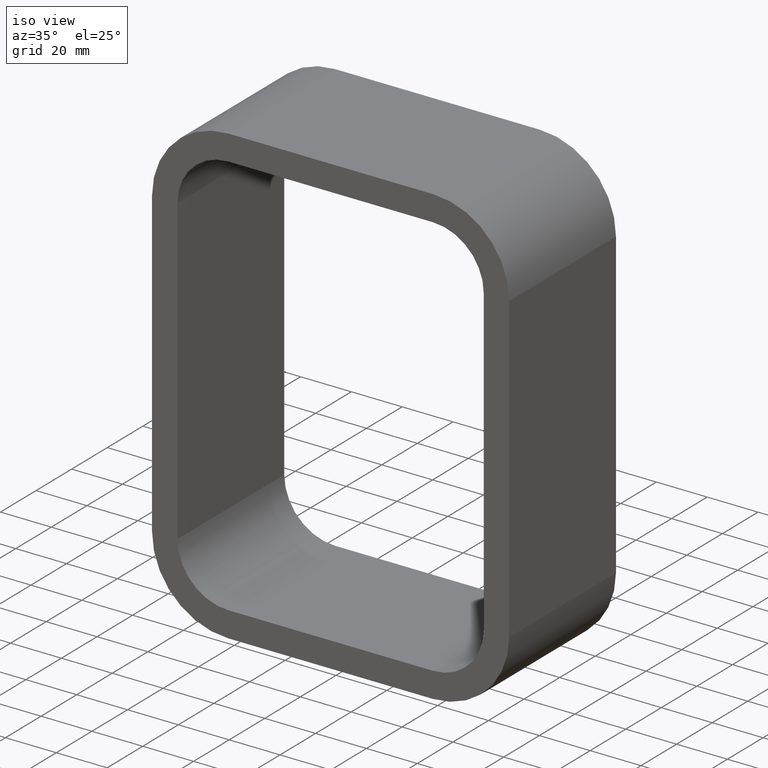
[diagram: clean part render]
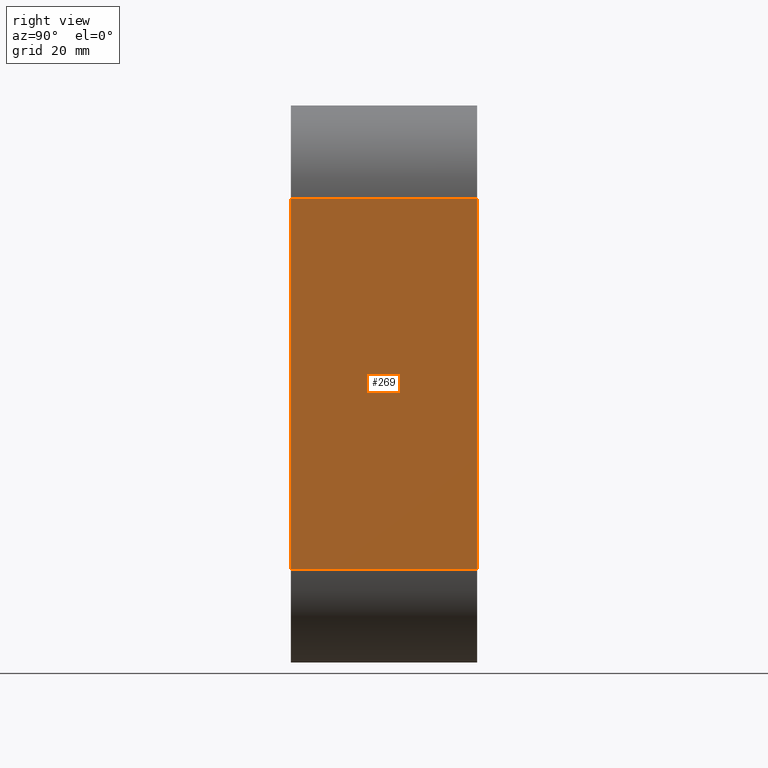
[diagram: tour spotlight — one face highlighted and labeled with its STEP entity id]
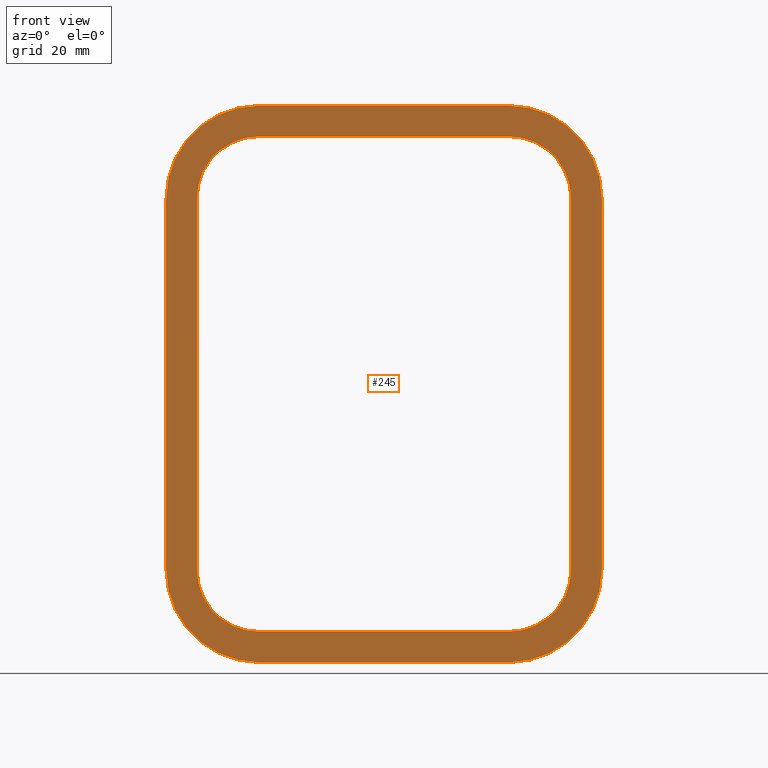
[diagram: tour spotlight — one face highlighted and labeled with its STEP entity id]
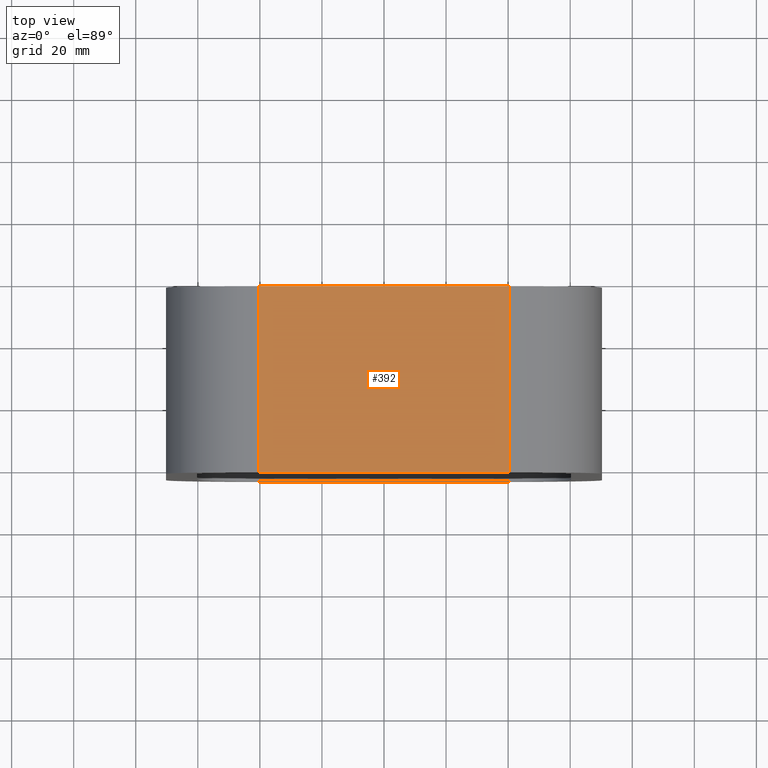
[diagram: tour spotlight — one face highlighted and labeled with its STEP entity id]
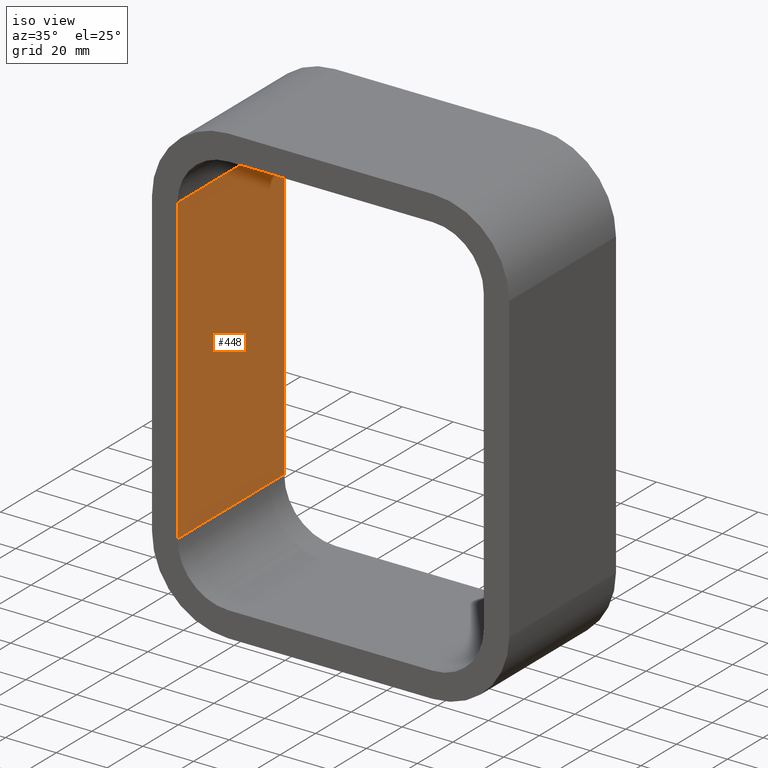
[diagram: tour spotlight — one face highlighted and labeled with its STEP entity id]
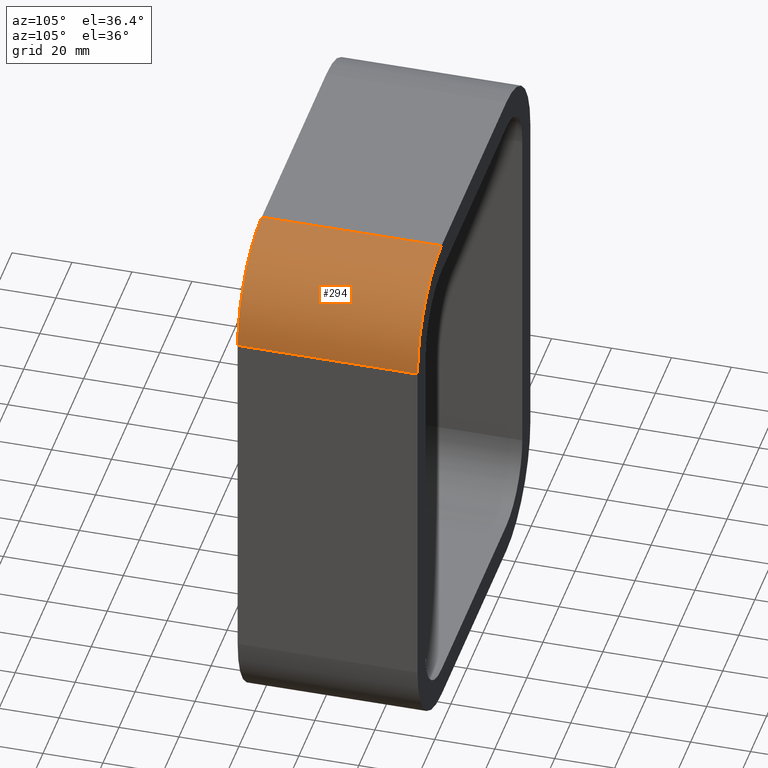
[diagram: tour spotlight — one face highlighted and labeled with its STEP entity id]
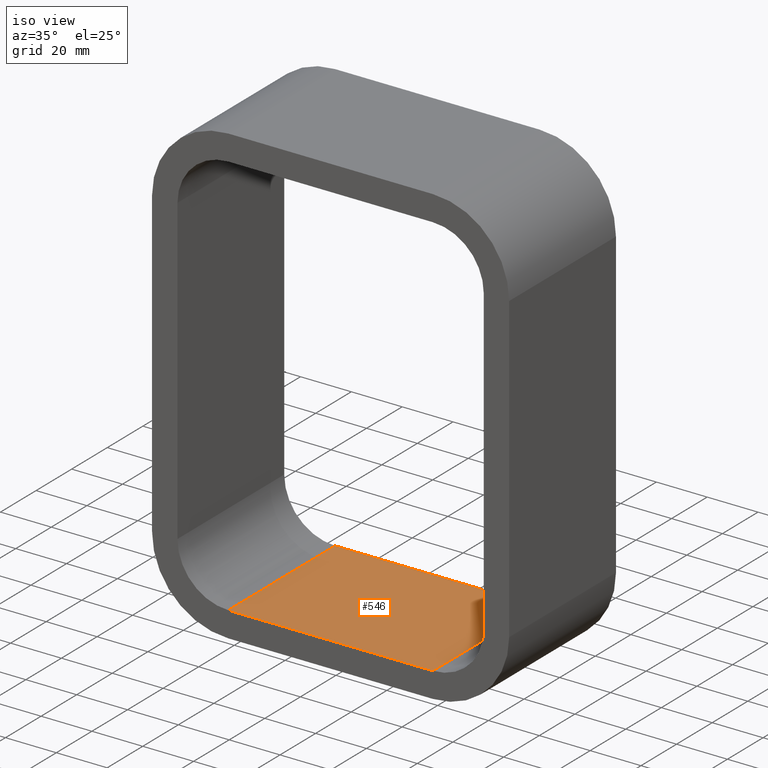
[diagram: tour spotlight — one face highlighted and labeled with its STEP entity id]
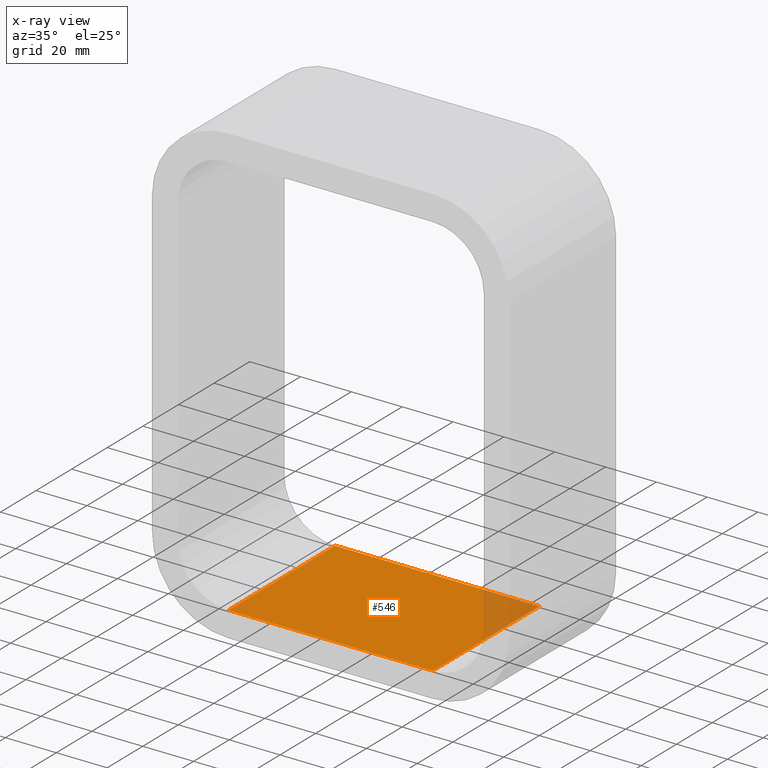
[diagram: x-ray of the same camera — body ghosted, this tour face saturated]
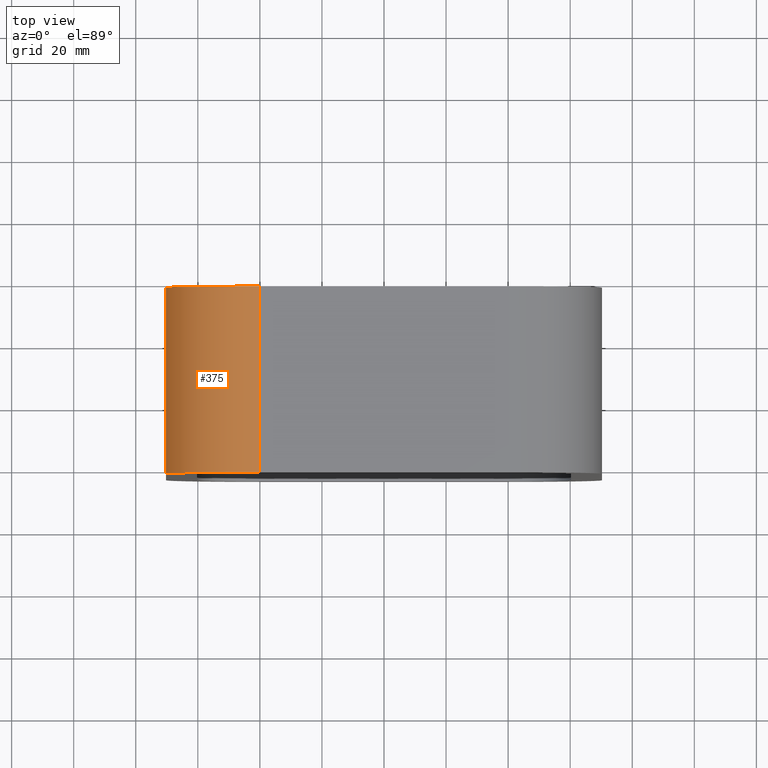
[diagram: tour spotlight — one face highlighted and labeled with its STEP entity id]
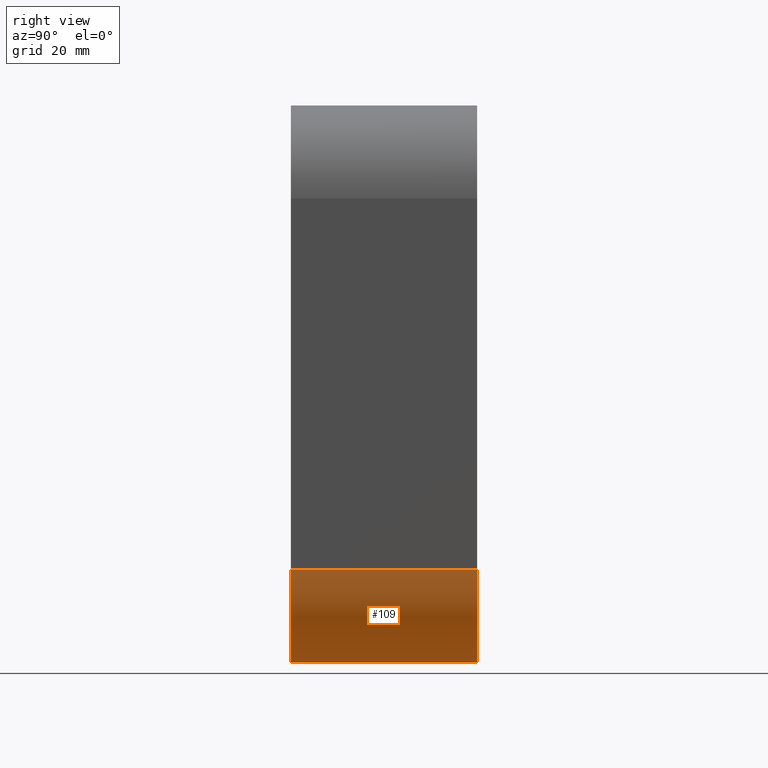
[diagram: tour spotlight — one face highlighted and labeled with its STEP entity id]
A machine part: a face-by-face anatomy tour. The part has 18 B-rep faces; the first image is the clean iso view, then the 8 largest visible faces are spotlighted one at a time (largest first), each with its STEP entity span.

Face 1 — right view, entity #269. In plain terms, the highlighted planar face has unit normal (1, 0, 0).
Definition (entity closure, byte-faithful):
#75=CARTESIAN_POINT('',(70.25,57.0,-59.750000000000014));
#76=VERTEX_POINT('',#75);
#84=CARTESIAN_POINT('',(70.25,-3.0,-59.750000000000014));
#85=VERTEX_POINT('',#84);
#86=CARTESIAN_POINT('',(70.25,57.0,-59.750000000000014));
#87=DIRECTION('',(0.0,-1.0,0.0));
#88=VECTOR('',#87,60.0);
#89=LINE('',#86,#88);
#90=EDGE_CURVE('',#76,#85,#89,.T.);
#116=CARTESIAN_POINT('',(70.25,-3.0,59.750000000000014));
#117=VERTEX_POINT('',#116);
#118=CARTESIAN_POINT('',(70.25,-3.0,-59.750000000000014));
#119=DIRECTION('',(0.0,0.0,1.0));
#120=VECTOR('',#119,119.50000000000003);
#121=LINE('',#118,#120);
#122=EDGE_CURVE('',#85,#117,#121,.T.);
#246=CARTESIAN_POINT('',(70.25,0.0,89.750000000000014));
#247=DIRECTION('',(1.0,0.0,0.0));
#248=DIRECTION('',(0.0,0.0,-1.0));
#249=AXIS2_PLACEMENT_3D('',#246,#247,#248);
#250=PLANE('',#249);
#251=ORIENTED_EDGE('',*,*,#90,.F.);
#252=CARTESIAN_POINT('',(70.25,57.0,59.750000000000014));
#253=VERTEX_POINT('',#252);
#254=CARTESIAN_POINT('',(70.25,57.0,59.750000000000014));
#255=DIRECTION('',(0.0,0.0,-1.0));
#256=VECTOR('',#255,119.50000000000003);
#257=LINE('',#254,#256);
#258=EDGE_CURVE('',#253,#76,#257,.T.);
#259=ORIENTED_EDGE('',*,*,#258,.F.);
#260=CARTESIAN_POINT('',(70.25,-3.0,59.750000000000014));
#261=DIRECTION('',(0.0,1.0,0.0));
#262=VECTOR('',#261,60.0);
#263=LINE('',#260,#262);
#264=EDGE_CURVE('',#117,#253,#263,.T.);
#265=ORIENTED_EDGE('',*,*,#264,.F.);
#266=ORIENTED_EDGE('',*,*,#122,.F.);
#267=EDGE_LOOP('',(#251,#259,#265,#266));
#268=FACE_OUTER_BOUND('',#267,.T.);
#269=ADVANCED_FACE('',(#268),#250,.T.);

Face 2 — front view, entity #245. In plain terms, the highlighted planar face has unit normal (0, 1, 0).
Definition (entity closure, byte-faithful):
#84=CARTESIAN_POINT('',(70.25,-3.0,-59.750000000000014));
#85=VERTEX_POINT('',#84);
#92=CARTESIAN_POINT('',(40.249999999999993,-3.0,-89.750000000000014));
#93=VERTEX_POINT('',#92);
#94=CARTESIAN_POINT('',(40.249999999999993,-3.0,-59.750000000000014));
#95=DIRECTION('',(0.0,1.0,0.0));
#96=DIRECTION('',(0.707106781186547,0.0,-0.707106781186547));
#97=AXIS2_PLACEMENT_3D('',#94,#95,#96);
#98=CIRCLE('',#97,30.0);
#99=EDGE_CURVE('',#85,#93,#98,.T.);
#110=CARTESIAN_POINT('',(-8.611167E-015,-3.0,0.0));
#111=DIRECTION('',(0.0,1.0,0.0));
#112=DIRECTION('',(0.0,0.0,1.0));
#113=AXIS2_PLACEMENT_3D('',#110,#111,#112);
#114=PLANE('',#113);
#115=ORIENTED_EDGE('',*,*,#99,.F.);
#116=CARTESIAN_POINT('',(70.25,-3.0,59.750000000000014));
#117=VERTEX_POINT('',#116);
#118=CARTESIAN_POINT('',(70.25,-3.0,-59.750000000000014));
#119=DIRECTION('',(0.0,0.0,1.0));
#120=VECTOR('',#119,119.50000000000003);
#121=LINE('',#118,#120);
#122=EDGE_CURVE('',#85,#117,#121,.T.);
#123=ORIENTED_EDGE('',*,*,#122,.T.);
#124=CARTESIAN_POINT('',(40.249999999999993,-3.0,89.750000000000014));
#125=VERTEX_POINT('',#124);
#126=CARTESIAN_POINT('',(40.249999999999993,-3.0,59.750000000000014));
#127=DIRECTION('',(0.0,1.0,0.0));
#128=DIRECTION('',(0.707106781186547,0.0,0.707106781186547));
#129=AXIS2_PLACEMENT_3D('',#126,#127,#128);
#130=CIRCLE('',#129,30.0);
#131=EDGE_CURVE('',#125,#117,#130,.T.);
#132=ORIENTED_EDGE('',*,*,#131,.F.);
#133=CARTESIAN_POINT('',(-40.250000000000014,-3.0,89.750000000000014));
#134=VERTEX_POINT('',#133);
#135=CARTESIAN_POINT('',(40.249999999999986,-3.0,89.750000000000014));
#136=DIRECTION('',(-1.0,0.0,0.0));
#137=VECTOR('',#136,80.5);
#138=LINE('',#135,#137);
#139=EDGE_CURVE('',#125,#134,#138,.T.);
#140=ORIENTED_EDGE('',*,*,#139,.T.);
#141=CARTESIAN_POINT('',(-70.250000000000014,-3.0,59.750000000000014));
#142=VERTEX_POINT('',#141);
#143=CARTESIAN_POINT('',(-40.250000000000014,-3.0,59.750000000000014));
#144=DIRECTION('',(0.0,1.0,0.0));
#145=DIRECTION('',(-0.707106781186547,0.0,0.707106781186547));
#146=AXIS2_PLACEMENT_3D('',#143,#144,#145);
#147=CIRCLE('',#146,30.0);
#148=EDGE_CURVE('',#142,#134,#147,.T.);
#149=ORIENTED_EDGE('',*,*,#148,.F.);
#150=CARTESIAN_POINT('',(-70.250000000000014,-3.0,-59.750000000000014));
#151=VERTEX_POINT('',#150);
#152=CARTESIAN_POINT('',(-70.250000000000014,-3.0,59.750000000000014));
#153=DIRECTION('',(0.0,0.0,-1.0));
#154=VECTOR('',#153,119.50000000000003);
#155=LINE('',#152,#154);
#156=EDGE_CURVE('',#142,#151,#155,.T.);
#157=ORIENTED_EDGE('',*,*,#156,.T.);
#158=CARTESIAN_POINT('',(-40.250000000000014,-3.0,-89.750000000000014));
#159=VERTEX_POINT('',#158);
#160=CARTESIAN_POINT('',(-40.250000000000014,-3.0,-59.750000000000014));
#161=DIRECTION('',(0.0,1.0,0.0));
#162=DIRECTION('',(-0.707106781186547,0.0,-0.707106781186547));
#163=AXIS2_PLACEMENT_3D('',#160,#161,#162);
#164=CIRCLE('',#163,30.0);
#165=EDGE_CURVE('',#159,#151,#164,.T.);
#166=ORIENTED_EDGE('',*,*,#165,.F.);
#167=CARTESIAN_POINT('',(-40.25,-3.0,-89.750000000000014));
#168=DIRECTION('',(1.0,0.0,0.0));
#169=VECTOR('',#168,80.5);
#170=LINE('',#167,#169);
#171=EDGE_CURVE('',#159,#93,#170,.T.);
#172=ORIENTED_EDGE('',*,*,#171,.T.);
#173=EDGE_LOOP('',(#115,#123,#132,#140,#149,#157,#166,#172));
#174=FACE_OUTER_BOUND('',#173,.T.);
#175=CARTESIAN_POINT('',(60.25,-3.0,59.750000000000014));
#176=VERTEX_POINT('',#175);
#177=CARTESIAN_POINT('',(60.25,-3.0,-59.75));
#178=VERTEX_POINT('',#177);
#179=CARTESIAN_POINT('',(60.25,-3.0,59.750000000000014));
#180=DIRECTION('',(0.0,0.0,-1.0));
#181=VECTOR('',#180,119.5);
#182=LINE('',#179,#181);
#183=EDGE_CURVE('',#176,#178,#182,.T.);
#184=ORIENTED_EDGE('',*,*,#183,.T.);
#185=CARTESIAN_POINT('',(40.25,-3.0,-79.75));
#186=VERTEX_POINT('',#185);
#187=CARTESIAN_POINT('',(40.25,-3.0,-59.75));
#188=DIRECTION('',(0.0,-1.0,0.0));
#189=DIRECTION('',(0.707106781186547,0.0,-0.707106781186547));
#190=AXIS2_PLACEMENT_3D('',#187,#188,#189);
#191=CIRCLE('',#190,19.999999999999996);
#192=EDGE_CURVE('',#186,#178,#191,.T.);
#193=ORIENTED_EDGE('',*,*,#192,.F.);
#194=CARTESIAN_POINT('',(-40.25,-3.0,-79.75));
#195=VERTEX_POINT('',#194);
#196=CARTESIAN_POINT('',(40.25,-3.0,-79.75));
#197=DIRECTION('',(-1.0,0.0,0.0));
#198=VECTOR('',#197,80.5);
#199=LINE('',#196,#198);
#200=EDGE_CURVE('',#186,#195,#199,.T.);
#201=ORIENTED_EDGE('',*,*,#200,.T.);
#202=CARTESIAN_POINT('',(-60.250000000000014,-3.0,-59.75));
#203=VERTEX_POINT('',#202);
#204=CARTESIAN_POINT('',(-40.25,-3.0,-59.75));
#205=DIRECTION('',(0.0,-1.0,0.0));
#206=DIRECTION('',(-0.707106781186547,0.0,-0.707106781186547));
#207=AXIS2_PLACEMENT_3D('',#204,#205,#206);
#208=CIRCLE('',#207,19.999999999999996);
#209=EDGE_CURVE('',#203,#195,#208,.T.);
#210=ORIENTED_EDGE('',*,*,#209,.F.);
#211=CARTESIAN_POINT('',(-60.250000000000014,-3.0,59.750000000000021));
#212=VERTEX_POINT('',#211);
#213=CARTESIAN_POINT('',(-60.250000000000014,-3.0,-59.75));
#214=DIRECTION('',(0.0,0.0,1.0));
#215=VECTOR('',#214,119.50000000000003);
#216=LINE('',#213,#215);
#217=EDGE_CURVE('',#203,#212,#216,.T.);
#218=ORIENTED_EDGE('',*,*,#217,.T.);
#219=CARTESIAN_POINT('',(-40.250000000000014,-3.0,79.750000000000014));
#220=VERTEX_POINT('',#219);
#221=CARTESIAN_POINT('',(-40.250000000000014,-3.0,59.750000000000014));
#222=DIRECTION('',(0.0,-1.0,0.0));
#223=DIRECTION('',(-0.707106781186547,0.0,0.707106781186547));
#224=AXIS2_PLACEMENT_3D('',#221,#222,#223);
#225=CIRCLE('',#224,19.999999999999996);
#226=EDGE_CURVE('',#220,#212,#225,.T.);
#227=ORIENTED_EDGE('',*,*,#226,.F.);
#228=CARTESIAN_POINT('',(40.25,-3.0,79.750000000000014));
#229=VERTEX_POINT('',#228);
#230=CARTESIAN_POINT('',(-40.250000000000014,-3.0,79.750000000000014));
#231=DIRECTION('',(1.0,0.0,0.0));
#232=VECTOR('',#231,80.500000000000014);
#233=LINE('',#230,#232);
#234=EDGE_CURVE('',#220,#229,#233,.T.);
#235=ORIENTED_EDGE('',*,*,#234,.T.);
#236=CARTESIAN_POINT('',(40.25,-3.0,59.750000000000014));
#237=DIRECTION('',(0.0,-1.0,0.0));
#238=DIRECTION('',(0.707106781186547,0.0,0.707106781186547));
#239=AXIS2_PLACEMENT_3D('',#236,#237,#238);
#240=CIRCLE('',#239,19.999999999999996);
#241=EDGE_CURVE('',#176,#229,#240,.T.);
#242=ORIENTED_EDGE('',*,*,#241,.F.);
#243=EDGE_LOOP('',(#184,#193,#201,#210,#218,#227,#235,#242));
#244=FACE_BOUND('',#243,.T.);
#245=ADVANCED_FACE('',(#174,#244),#114,.F.);

Face 3 — top view, entity #392. In plain terms, the highlighted planar face has unit normal (0, 0, 1).
Definition (entity closure, byte-faithful):
#124=CARTESIAN_POINT('',(40.249999999999993,-3.0,89.750000000000014));
#125=VERTEX_POINT('',#124);
#133=CARTESIAN_POINT('',(-40.250000000000014,-3.0,89.750000000000014));
#134=VERTEX_POINT('',#133);
#135=CARTESIAN_POINT('',(40.249999999999986,-3.0,89.750000000000014));
#136=DIRECTION('',(-1.0,0.0,0.0));
#137=VECTOR('',#136,80.5);
#138=LINE('',#135,#137);
#139=EDGE_CURVE('',#125,#134,#138,.T.);
#277=CARTESIAN_POINT('',(40.249999999999993,57.0,89.750000000000014));
#278=VERTEX_POINT('',#277);
#286=CARTESIAN_POINT('',(40.249999999999993,57.0,89.750000000000014));
#287=DIRECTION('',(0.0,-1.0,0.0));
#288=VECTOR('',#287,60.0);
#289=LINE('',#286,#288);
#290=EDGE_CURVE('',#278,#125,#289,.T.);
#356=CARTESIAN_POINT('',(-40.250000000000014,57.0,89.750000000000014));
#357=VERTEX_POINT('',#356);
#367=CARTESIAN_POINT('',(-40.250000000000014,-3.0,89.750000000000014));
#368=DIRECTION('',(0.0,1.0,0.0));
#369=VECTOR('',#368,60.0);
#370=LINE('',#367,#369);
#371=EDGE_CURVE('',#134,#357,#370,.T.);
#376=CARTESIAN_POINT('',(-70.250000000000014,0.0,89.750000000000014));
#377=DIRECTION('',(0.0,0.0,1.0));
#378=DIRECTION('',(1.0,0.0,0.0));
#379=AXIS2_PLACEMENT_3D('',#376,#377,#378);
#380=PLANE('',#379);
#381=ORIENTED_EDGE('',*,*,#290,.F.);
#382=CARTESIAN_POINT('',(-40.250000000000014,57.0,89.750000000000014));
#383=DIRECTION('',(1.0,0.0,0.0));
#384=VECTOR('',#383,80.5);
#385=LINE('',#382,#384);
#386=EDGE_CURVE('',#357,#278,#385,.T.);
#387=ORIENTED_EDGE('',*,*,#386,.F.);
#388=ORIENTED_EDGE('',*,*,#371,.F.);
#389=ORIENTED_EDGE('',*,*,#139,.F.);
#390=EDGE_LOOP('',(#381,#387,#388,#389));
#391=FACE_OUTER_BOUND('',#390,.T.);
#392=ADVANCED_FACE('',(#391),#380,.T.);

Face 4 — iso view, entity #448. In plain terms, the highlighted planar face has unit normal (-1, 0, 0).
Definition (entity closure, byte-faithful):
#202=CARTESIAN_POINT('',(-60.250000000000014,-3.0,-59.75));
#203=VERTEX_POINT('',#202);
#211=CARTESIAN_POINT('',(-60.250000000000014,-3.0,59.750000000000021));
#212=VERTEX_POINT('',#211);
#213=CARTESIAN_POINT('',(-60.250000000000014,-3.0,-59.75));
#214=DIRECTION('',(0.0,0.0,1.0));
#215=VECTOR('',#214,119.50000000000003);
#216=LINE('',#213,#215);
#217=EDGE_CURVE('',#203,#212,#216,.T.);
#399=CARTESIAN_POINT('',(-60.250000000000014,57.0,59.750000000000021));
#400=VERTEX_POINT('',#399);
#401=CARTESIAN_POINT('',(-60.250000000000014,-3.0,59.750000000000014));
#402=DIRECTION('',(0.0,1.0,0.0));
#403=VECTOR('',#402,60.0);
#404=LINE('',#401,#403);
#405=EDGE_CURVE('',#212,#400,#404,.T.);
#425=CARTESIAN_POINT('',(-60.250000000000014,0.0,-79.75));
#426=DIRECTION('',(-1.0,0.0,0.0));
#427=DIRECTION('',(0.0,0.0,1.0));
#428=AXIS2_PLACEMENT_3D('',#425,#426,#427);
#429=PLANE('',#428);
#430=ORIENTED_EDGE('',*,*,#405,.F.);
#431=ORIENTED_EDGE('',*,*,#217,.F.);
#432=CARTESIAN_POINT('',(-60.250000000000014,57.0,-59.75));
#433=VERTEX_POINT('',#432);
#434=CARTESIAN_POINT('',(-60.250000000000014,57.0,-59.75));
#435=DIRECTION('',(0.0,-1.0,0.0));
#436=VECTOR('',#435,60.0);
#437=LINE('',#434,#436);
#438=EDGE_CURVE('',#433,#203,#437,.T.);
#439=ORIENTED_EDGE('',*,*,#438,.F.);
#440=CARTESIAN_POINT('',(-60.250000000000014,57.0,59.750000000000028));
#441=DIRECTION('',(0.0,0.0,-1.0));
#442=VECTOR('',#441,119.50000000000003);
#443=LINE('',#440,#442);
#444=EDGE_CURVE('',#400,#433,#443,.T.);
#445=ORIENTED_EDGE('',*,*,#444,.F.);
#446=EDGE_LOOP('',(#430,#431,#439,#445));
#447=FACE_OUTER_BOUND('',#446,.T.);
#448=ADVANCED_FACE('',(#447),#429,.F.);

Face 5 — auxiliary view, entity #294. In plain terms, the highlighted cylindrical surface (partial cylindrical patch) has radius 30 mm, axis along (0, -1, 0).
Definition (entity closure, byte-faithful):
#116=CARTESIAN_POINT('',(70.25,-3.0,59.750000000000014));
#117=VERTEX_POINT('',#116);
#124=CARTESIAN_POINT('',(40.249999999999993,-3.0,89.750000000000014));
#125=VERTEX_POINT('',#124);
#126=CARTESIAN_POINT('',(40.249999999999993,-3.0,59.750000000000014));
#127=DIRECTION('',(0.0,1.0,0.0));
#128=DIRECTION('',(0.707106781186547,0.0,0.707106781186547));
#129=AXIS2_PLACEMENT_3D('',#126,#127,#128);
#130=CIRCLE('',#129,30.0);
#131=EDGE_CURVE('',#125,#117,#130,.T.);
#252=CARTESIAN_POINT('',(70.25,57.0,59.750000000000014));
#253=VERTEX_POINT('',#252);
#260=CARTESIAN_POINT('',(70.25,-3.0,59.750000000000014));
#261=DIRECTION('',(0.0,1.0,0.0));
#262=VECTOR('',#261,60.0);
#263=LINE('',#260,#262);
#264=EDGE_CURVE('',#117,#253,#263,.T.);
#270=CARTESIAN_POINT('',(40.249999999999993,0.0,59.750000000000014));
#271=DIRECTION('',(0.0,-1.0,0.0));
#272=DIRECTION('',(0.707106781186547,0.0,0.707106781186547));
#273=AXIS2_PLACEMENT_3D('',#270,#271,#272);
#274=CYLINDRICAL_SURFACE('',#273,30.000000000000004);
#275=ORIENTED_EDGE('',*,*,#131,.T.);
#276=ORIENTED_EDGE('',*,*,#264,.T.);
#277=CARTESIAN_POINT('',(40.249999999999993,57.0,89.750000000000014));
#278=VERTEX_POINT('',#277);
#279=CARTESIAN_POINT('',(40.249999999999993,57.0,59.750000000000014));
#280=DIRECTION('',(0.0,-1.0,0.0));
#281=DIRECTION('',(0.707106781186547,0.0,0.707106781186547));
#282=AXIS2_PLACEMENT_3D('',#279,#280,#281);
#283=CIRCLE('',#282,30.0);
#284=EDGE_CURVE('',#253,#278,#283,.T.);
#285=ORIENTED_EDGE('',*,*,#284,.T.);
#286=CARTESIAN_POINT('',(40.249999999999993,57.0,89.750000000000014));
#287=DIRECTION('',(0.0,-1.0,0.0));
#288=VECTOR('',#287,60.0);
#289=LINE('',#286,#288);
#290=EDGE_CURVE('',#278,#125,#289,.T.);
#291=ORIENTED_EDGE('',*,*,#290,.T.);
#292=EDGE_LOOP('',(#275,#276,#285,#291));
#293=FACE_OUTER_BOUND('',#292,.T.);
#294=ADVANCED_FACE('',(#293),#274,.T.);

Face 6 — iso view, entity #546. An x-ray twin of the same camera follows (body ghosted, this face saturated) — the face is partly hidden behind the body. In plain terms, the highlighted planar face has unit normal (0, 0, -1).
Definition (entity closure, byte-faithful):
#185=CARTESIAN_POINT('',(40.25,-3.0,-79.75));
#186=VERTEX_POINT('',#185);
#194=CARTESIAN_POINT('',(-40.25,-3.0,-79.75));
#195=VERTEX_POINT('',#194);
#196=CARTESIAN_POINT('',(40.25,-3.0,-79.75));
#197=DIRECTION('',(-1.0,0.0,0.0));
#198=VECTOR('',#197,80.5);
#199=LINE('',#196,#198);
#200=EDGE_CURVE('',#186,#195,#199,.T.);
#504=CARTESIAN_POINT('',(-40.25,57.0,-79.75));
#505=VERTEX_POINT('',#504);
#506=CARTESIAN_POINT('',(-40.25,-3.0,-79.75));
#507=DIRECTION('',(0.0,1.0,0.0));
#508=VECTOR('',#507,60.0);
#509=LINE('',#506,#508);
#510=EDGE_CURVE('',#195,#505,#509,.T.);
#523=CARTESIAN_POINT('',(60.25,0.0,-79.75));
#524=DIRECTION('',(0.0,0.0,-1.0));
#525=DIRECTION('',(-1.0,0.0,0.0));
#526=AXIS2_PLACEMENT_3D('',#523,#524,#525);
#527=PLANE('',#526);
#528=ORIENTED_EDGE('',*,*,#510,.F.);
#529=ORIENTED_EDGE('',*,*,#200,.F.);
#530=CARTESIAN_POINT('',(40.25,57.0,-79.75));
#531=VERTEX_POINT('',#530);
#532=CARTESIAN_POINT('',(40.25,57.0,-79.75));
#533=DIRECTION('',(0.0,-1.0,0.0));
#534=VECTOR('',#533,60.0);
#535=LINE('',#532,#534);
#536=EDGE_CURVE('',#531,#186,#535,.T.);
#537=ORIENTED_EDGE('',*,*,#536,.F.);
#538=CARTESIAN_POINT('',(-40.25,57.0,-79.75));
#539=DIRECTION('',(1.0,0.0,0.0));
#540=VECTOR('',#539,80.5);
#541=LINE('',#538,#540);
#542=EDGE_CURVE('',#505,#531,#541,.T.);
#543=ORIENTED_EDGE('',*,*,#542,.F.);
#544=EDGE_LOOP('',(#528,#529,#537,#543));
#545=FACE_OUTER_BOUND('',#544,.T.);
#546=ADVANCED_FACE('',(#545),#527,.F.);

Face 7 — top view, entity #375. In plain terms, the highlighted cylindrical surface (partial cylindrical patch) has radius 30 mm, axis along (0, 1, 0).
Definition (entity closure, byte-faithful):
#133=CARTESIAN_POINT('',(-40.250000000000014,-3.0,89.750000000000014));
#134=VERTEX_POINT('',#133);
#141=CARTESIAN_POINT('',(-70.250000000000014,-3.0,59.750000000000014));
#142=VERTEX_POINT('',#141);
#143=CARTESIAN_POINT('',(-40.250000000000014,-3.0,59.750000000000014));
#144=DIRECTION('',(0.0,1.0,0.0));
#145=DIRECTION('',(-0.707106781186547,0.0,0.707106781186547));
#146=AXIS2_PLACEMENT_3D('',#143,#144,#145);
#147=CIRCLE('',#146,30.0);
#148=EDGE_CURVE('',#142,#134,#147,.T.);
#334=CARTESIAN_POINT('',(-70.250000000000014,57.0,59.750000000000014));
#335=VERTEX_POINT('',#334);
#336=CARTESIAN_POINT('',(-70.250000000000014,57.0,59.750000000000014));
#337=DIRECTION('',(0.0,-1.0,0.0));
#338=VECTOR('',#337,60.0);
#339=LINE('',#336,#338);
#340=EDGE_CURVE('',#335,#142,#339,.T.);
#351=CARTESIAN_POINT('',(-40.250000000000014,0.0,59.750000000000014));
#352=DIRECTION('',(0.0,1.0,0.0));
#353=DIRECTION('',(-0.707106781186547,0.0,0.707106781186547));
#354=AXIS2_PLACEMENT_3D('',#351,#352,#353);
#355=CYLINDRICAL_SURFACE('',#354,30.000000000000004);
#356=CARTESIAN_POINT('',(-40.250000000000014,57.0,89.750000000000014));
#357=VERTEX_POINT('',#356);
#358=CARTESIAN_POINT('',(-40.250000000000014,57.0,59.750000000000014));
#359=DIRECTION('',(0.0,-1.0,0.0));
#360=DIRECTION('',(-0.707106781186547,0.0,0.707106781186547));
#361=AXIS2_PLACEMENT_3D('',#358,#359,#360);
#362=CIRCLE('',#361,30.0);
#363=EDGE_CURVE('',#357,#335,#362,.T.);
#364=ORIENTED_EDGE('',*,*,#363,.T.);
#365=ORIENTED_EDGE('',*,*,#340,.T.);
#366=ORIENTED_EDGE('',*,*,#148,.T.);
#367=CARTESIAN_POINT('',(-40.250000000000014,-3.0,89.750000000000014));
#368=DIRECTION('',(0.0,1.0,0.0));
#369=VECTOR('',#368,60.0);
#370=LINE('',#367,#369);
#371=EDGE_CURVE('',#134,#357,#370,.T.);
#372=ORIENTED_EDGE('',*,*,#371,.T.);
#373=EDGE_LOOP('',(#364,#365,#366,#372));
#374=FACE_OUTER_BOUND('',#373,.T.);
#375=ADVANCED_FACE('',(#374),#355,.T.);

Face 8 — right view, entity #109. In plain terms, the highlighted cylindrical surface (partial cylindrical patch) has radius 30 mm, axis along (0, 1, 0).
Definition (entity closure, byte-faithful):
#68=CARTESIAN_POINT('',(40.249999999999993,0.0,-59.750000000000014));
#69=DIRECTION('',(0.0,1.0,0.0));
#70=DIRECTION('',(0.707106781186547,0.0,-0.707106781186547));
#71=AXIS2_PLACEMENT_3D('',#68,#69,#70);
#72=CYLINDRICAL_SURFACE('',#71,30.000000000000004);
#73=CARTESIAN_POINT('',(40.249999999999993,57.0,-89.750000000000014));
#74=VERTEX_POINT('',#73);
#75=CARTESIAN_POINT('',(70.25,57.0,-59.750000000000014));
#76=VERTEX_POINT('',#75);
#77=CARTESIAN_POINT('',(40.249999999999993,57.0,-59.750000000000014));
#78=DIRECTION('',(0.0,-1.0,0.0));
#79=DIRECTION('',(0.707106781186547,0.0,-0.707106781186547));
#80=AXIS2_PLACEMENT_3D('',#77,#78,#79);
#81=CIRCLE('',#80,30.0);
#82=EDGE_CURVE('',#74,#76,#81,.T.);
#83=ORIENTED_EDGE('',*,*,#82,.T.);
#84=CARTESIAN_POINT('',(70.25,-3.0,-59.750000000000014));
#85=VERTEX_POINT('',#84);
#86=CARTESIAN_POINT('',(70.25,57.0,-59.750000000000014));
#87=DIRECTION('',(0.0,-1.0,0.0));
#88=VECTOR('',#87,60.0);
#89=LINE('',#86,#88);
#90=EDGE_CURVE('',#76,#85,#89,.T.);
#91=ORIENTED_EDGE('',*,*,#90,.T.);
#92=CARTESIAN_POINT('',(40.249999999999993,-3.0,-89.750000000000014));
#93=VERTEX_POINT('',#92);
#94=CARTESIAN_POINT('',(40.249999999999993,-3.0,-59.750000000000014));
#95=DIRECTION('',(0.0,1.0,0.0));
#96=DIRECTION('',(0.707106781186547,0.0,-0.707106781186547));
#97=AXIS2_PLACEMENT_3D('',#94,#95,#96);
#98=CIRCLE('',#97,30.0);
#99=EDGE_CURVE('',#85,#93,#98,.T.);
#100=ORIENTED_EDGE('',*,*,#99,.T.);
#101=CARTESIAN_POINT('',(40.249999999999993,-3.0,-89.750000000000014));
#102=DIRECTION('',(0.0,1.0,0.0));
#103=VECTOR('',#102,60.0);
#104=LINE('',#101,#103);
#105=EDGE_CURVE('',#93,#74,#104,.T.);
#106=ORIENTED_EDGE('',*,*,#105,.T.);
#107=EDGE_LOOP('',(#83,#91,#100,#106));
#108=FACE_OUTER_BOUND('',#107,.T.);
#109=ADVANCED_FACE('',(#108),#72,.T.);